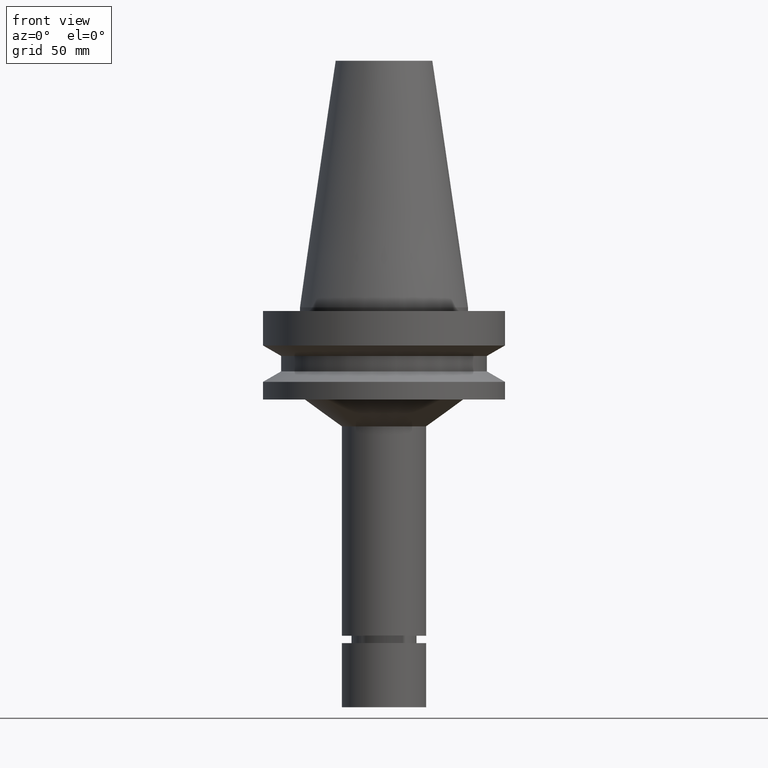
[diagram: clean part render]
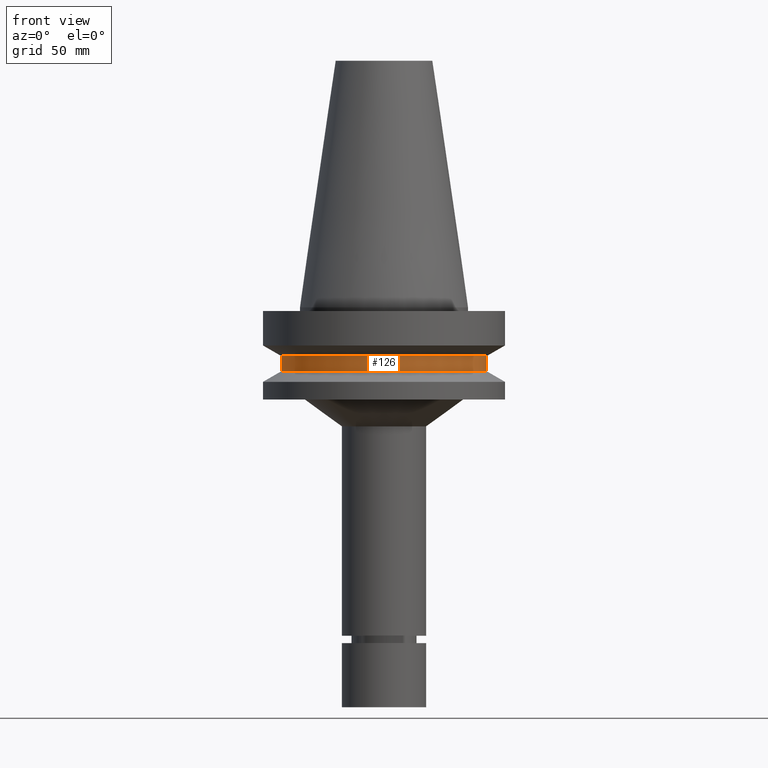
[diagram: same view with one face highlighted and labeled with its STEP entity id]
A machine part, front view. The second image highlights one B-rep face of the part: STEP entity #126.
In plain terms, the highlighted cylindrical surface (bore or boss wall) has radius 42.5 mm, axis along (-0, -0, 1).
Its self-contained STEP definition (entity closure, byte-faithful):
#96=EDGE_CURVE('Unnamed[1]',#234,#234,#235,.T.);
#118=EDGE_CURVE('Unnamed[1]',#266,#266,#267,.T.);
#126=ADVANCED_FACE('Unnamed[1]',(#278,#279),#280,.T.);
#234=VERTEX_POINT('',#418);
#235=CIRCLE('',#419,42.5);
#266=VERTEX_POINT('',#458);
#267=CIRCLE('',#459,42.5);
#278=FACE_BOUND('',#473,.T.);
#279=FACE_BOUND('',#474,.T.);
#280=CYLINDRICAL_SURFACE('',#475,42.5);
#418=CARTESIAN_POINT('',(1.61468902694397E-015,42.5,-26.3698729800001));
#419=AXIS2_PLACEMENT_3D('',#618,#619,#620);
#458=CARTESIAN_POINT('',(1.2264915470779E-015,42.5,-20.03012702));
#459=AXIS2_PLACEMENT_3D('',#651,#652,#653);
#473=EDGE_LOOP('',(#664));
#474=EDGE_LOOP('',(#665));
#475=AXIS2_PLACEMENT_3D('',#666,#667,#668);
#618=CARTESIAN_POINT('',(1.61468902694397E-015,1.6527485389126E-014,-26.3698729800001));
#619=DIRECTION('',(-6.12323399573677E-017,-2.72265846766253E-017,1.0));
#620=DIRECTION('',(-6.4943002195635E-033,1.0,2.72265846766253E-017));
#651=CARTESIAN_POINT('',(1.2264915470779E-015,1.63548757589177E-014,-20.03012702));
#652=DIRECTION('',(-6.12323399573677E-017,-2.72265846766253E-017,1.0));
#653=DIRECTION('',(-6.4943002195635E-033,1.0,2.72265846766253E-017));
#664=ORIENTED_EDGE('',*,*,#118,.F.);
#665=ORIENTED_EDGE('',*,*,#96,.T.);
#666=CARTESIAN_POINT('',(1.42059028701093E-015,1.64411805740219E-014,-23.2));
#667=DIRECTION('',(-6.12323399573677E-017,-2.72265846766253E-017,1.0));
#668=DIRECTION('',(-6.4943002195635E-033,1.0,2.72265846766253E-017));